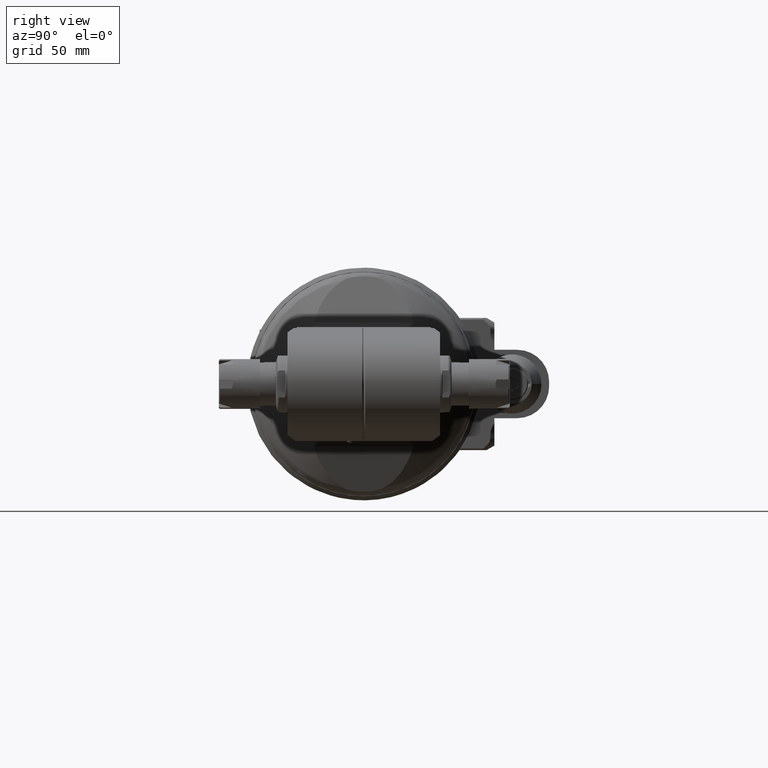
[diagram: clean part render]
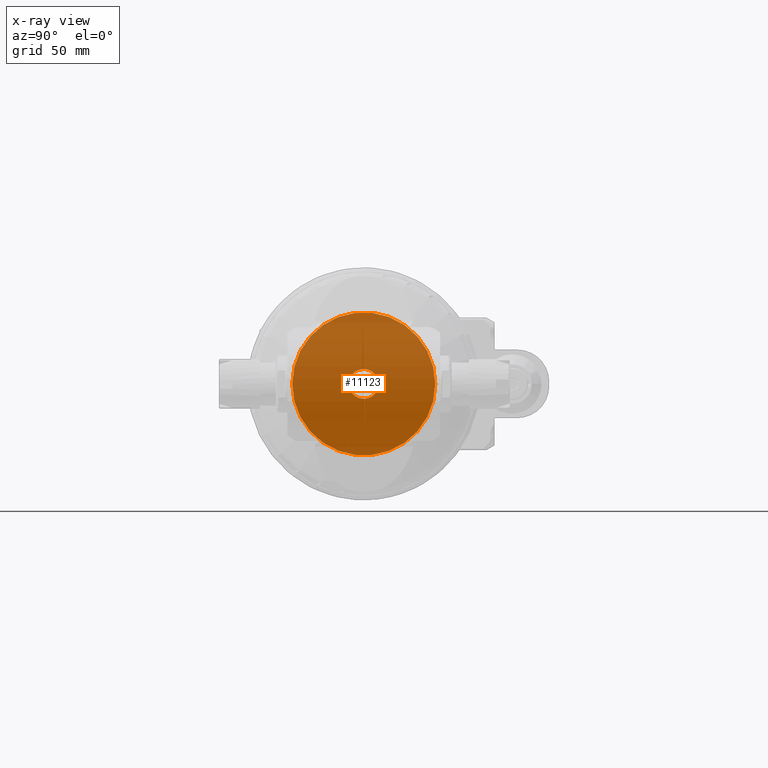
[diagram: x-ray — body ghosted, one internal face saturated and labeled with its STEP entity id]
A machine part, right view, then the same camera in x-ray: the body is ghosted and one INTERNAL B-rep face — a face not visible from any outside direction — is saturated and labeled: STEP entity #11123.
In plain terms, the highlighted planar face has unit normal (1, 0, 0).
Its self-contained STEP definition (entity closure, byte-faithful):
#316=FACE_BOUND('',#2608,.T.);
#1022=CIRCLE('',#12359,1.23425196850394);
#1031=CIRCLE('',#12384,0.255905511811024);
#1842=FACE_OUTER_BOUND('',#2607,.T.);
#2607=EDGE_LOOP('',(#10020));
#2608=EDGE_LOOP('',(#10021));
#5278=VERTEX_POINT('',#50174);
#5301=VERTEX_POINT('',#50271);
#6851=EDGE_CURVE('',#5278,#5278,#1022,.T.);
#6888=EDGE_CURVE('',#5301,#5301,#1031,.T.);
#10020=ORIENTED_EDGE('',*,*,#6851,.T.);
#10021=ORIENTED_EDGE('',*,*,#6888,.T.);
#10482=PLANE('',#12383);
#11123=ADVANCED_FACE('',(#1842,#316),#10482,.T.);
#12359=AXIS2_PLACEMENT_3D('',#50176,#15394,#15395);
#12383=AXIS2_PLACEMENT_3D('',#50270,#15460,#15461);
#12384=AXIS2_PLACEMENT_3D('',#50272,#15462,#15463);
#15394=DIRECTION('center_axis',(1.,0.,0.));
#15395=DIRECTION('ref_axis',(0.,1.,-1.400901549979E-9));
#15460=DIRECTION('center_axis',(1.,0.,0.));
#15461=DIRECTION('ref_axis',(0.,1.,-1.400901672444E-9));
#15462=DIRECTION('center_axis',(-1.,0.,0.));
#15463=DIRECTION('ref_axis',(0.,-1.,0.));
#50174=CARTESIAN_POINT('',(-1.73228346456694,1.23425196850394,-1.7290656473874E-9));
#50176=CARTESIAN_POINT('Origin',(-1.73228346456694,0.,0.));
#50270=CARTESIAN_POINT('Origin',(-1.73228346456694,0.,0.));
#50271=CARTESIAN_POINT('',(-1.73228346456693,0.255905511811024,0.));
#50272=CARTESIAN_POINT('Origin',(-1.73228346456693,0.,0.));